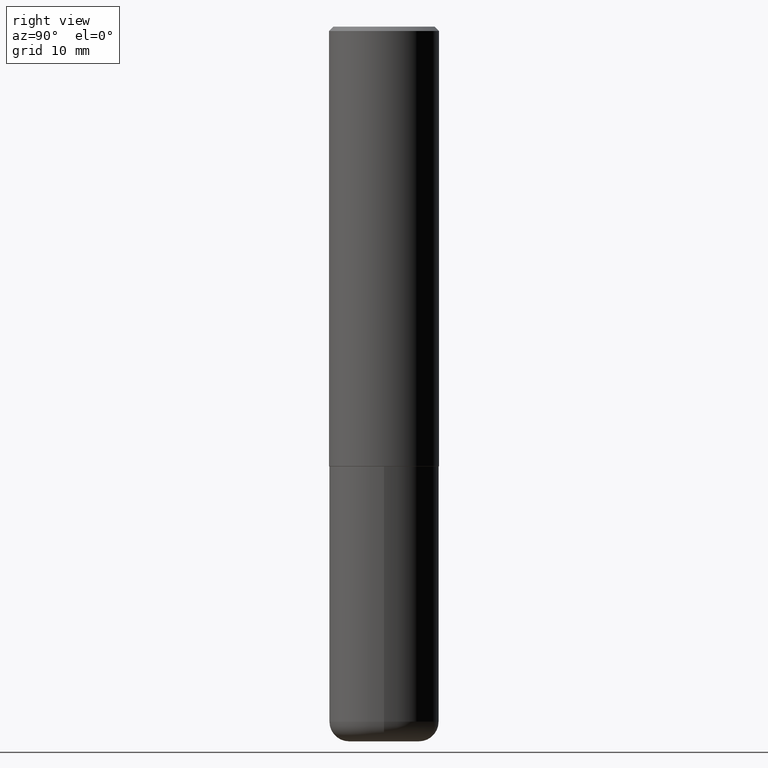
[diagram: clean part render]
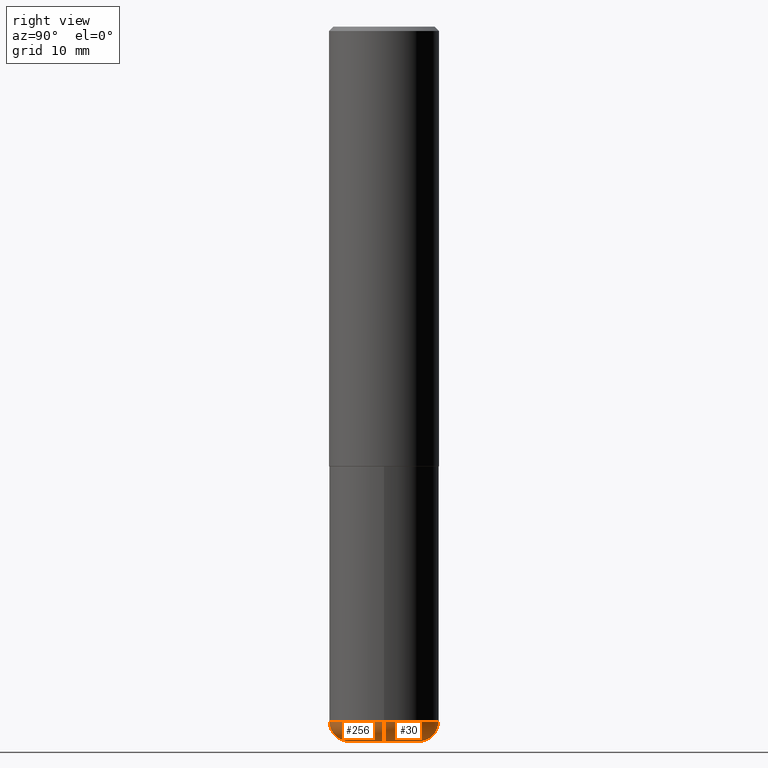
[diagram: same view with one multi-face feature highlighted, each face labeled with its STEP entity id]
A machine part, right view. The highlighted faces form ONE feature: a constant-radius fillet chain: 2 tangent blend faces with common blend radius 2.286 mm. The faces share edges in the B-rep.
Their STEP definitions:
[1] entity #30 (Torus):
#6 = CIRCLE ( 'NONE', #346, 0.1600000000000000033 ) ;
#11 = AXIS2_PLACEMENT_3D ( 'NONE', #387, #326, #294 ) ;
#23 = CIRCLE ( 'NONE', #94, 0.2500000000000000555 ) ;
#30 = ADVANCED_FACE ( 'NONE', ( #61 ), #378, .T. ) ;
#45 = VERTEX_POINT ( 'NONE', #190 ) ;
#49 = CIRCLE ( 'NONE', #228, 0.08999999999999964972 ) ;
#50 = ORIENTED_EDGE ( 'NONE', *, *, #299, .T. ) ;
#61 = FACE_OUTER_BOUND ( 'NONE', #111, .T. ) ;
#66 = CARTESIAN_POINT ( 'NONE',  ( 0.1600000000000000033, -1.246458837967002615E-14, -3.249999999999999556 ) ) ;
#72 = EDGE_CURVE ( 'NONE', #172, #136, #328, .T. ) ;
#93 = CARTESIAN_POINT ( 'NONE',  ( -0.1600000000000000033, -9.733585082684075330E-15, -3.249999999999999556 ) ) ;
#94 = AXIS2_PLACEMENT_3D ( 'NONE', #388, #156, #152 ) ;
#96 = CARTESIAN_POINT ( 'NONE',  ( 0.1600000000000000033, -1.215035505917414131E-14, -3.160000000000000142 ) ) ;
#111 = EDGE_LOOP ( 'NONE', ( #360, #50, #138, #272 ) ) ;
#128 = CARTESIAN_POINT ( 'NONE',  ( 0.2499999999999998612, -1.277882170016590626E-14, -3.160000000000000142 ) ) ;
#134 = EDGE_CURVE ( 'NONE', #136, #45, #23, .T. ) ;
#136 = VERTEX_POINT ( 'NONE', #128 ) ;
#138 = ORIENTED_EDGE ( 'NONE', *, *, #134, .F. ) ;
#143 = VERTEX_POINT ( 'NONE', #93 ) ;
#152 = DIRECTION ( 'NONE',  ( 1.000000000000000000, -6.982962677686269077E-15, 0.000000000000000000 ) ) ;
#156 = DIRECTION ( 'NONE',  ( -2.445468806185136597E-29, 3.491481338843145583E-15, 1.000000000000000000 ) ) ;
#172 = VERTEX_POINT ( 'NONE', #66 ) ;
#174 = DIRECTION ( 'NONE',  ( 7.105427357601001859E-15, 1.000000000000000000, -3.491481338843145583E-15 ) ) ;
#190 = CARTESIAN_POINT ( 'NONE',  ( -0.2499999999999998612, -9.256724191344090697E-15, -3.160000000000000142 ) ) ;
#198 = AXIS2_PLACEMENT_3D ( 'NONE', #96, #418, #352 ) ;
#206 = DIRECTION ( 'NONE',  ( -2.445468806185136597E-29, 3.491481338843145583E-15, 1.000000000000000000 ) ) ;
#223 = EDGE_CURVE ( 'NONE', #172, #143, #6, .T. ) ;
#228 = AXIS2_PLACEMENT_3D ( 'NONE', #399, #174, #319 ) ;
#272 = ORIENTED_EDGE ( 'NONE', *, *, #72, .F. ) ;
#277 = DIRECTION ( 'NONE',  ( 1.000000000000000000, -6.982962677686271444E-15, 0.000000000000000000 ) ) ;
#294 = DIRECTION ( 'NONE',  ( 1.000000000000000000, -6.982962677686265133E-15, 4.883557194083112340E-29 ) ) ;
#299 = EDGE_CURVE ( 'NONE', #143, #45, #49, .T. ) ;
#319 = DIRECTION ( 'NONE',  ( -1.000000000000000000, 7.105427357600996337E-15, 0.000000000000000000 ) ) ;
#326 = DIRECTION ( 'NONE',  ( -2.445468806185136597E-29, 3.491481338843145583E-15, 1.000000000000000000 ) ) ;
#328 = CIRCLE ( 'NONE', #198, 0.08999999999999964972 ) ;
#346 = AXIS2_PLACEMENT_3D ( 'NONE', #358, #206, #277 ) ;
#352 = DIRECTION ( 'NONE',  ( 1.000000000000000000, -6.982962677686273810E-15, 0.000000000000000000 ) ) ;
#358 = CARTESIAN_POINT ( 'NONE',  ( 7.947773620101692818E-29, -1.134731435124022127E-14, -3.249999999999999556 ) ) ;
#360 = ORIENTED_EDGE ( 'NONE', *, *, #223, .T. ) ;
#378 = TOROIDAL_SURFACE ( 'NONE', #11, 0.1600000000000000033, 0.08999999999999967748 ) ;
#387 = CARTESIAN_POINT ( 'NONE',  ( 7.727681427545032274E-29, -1.103308103074433958E-14, -3.160000000000000142 ) ) ;
#388 = CARTESIAN_POINT ( 'NONE',  ( 7.727681427545032274E-29, -1.103308103074433958E-14, -3.160000000000000142 ) ) ;
#399 = CARTESIAN_POINT ( 'NONE',  ( -0.1600000000000000033, -9.896212653528179854E-15, -3.160000000000000142 ) ) ;
#418 = DIRECTION ( 'NONE',  ( -6.982962677686266711E-15, -1.000000000000000000, 3.491481338843145583E-15 ) ) ;
[2] entity #256 (Torus):
#10 = ORIENTED_EDGE ( 'NONE', *, *, #153, .T. ) ;
#12 = CIRCLE ( 'NONE', #359, 0.1600000000000000033 ) ;
#37 = DIRECTION ( 'NONE',  ( -2.445468806185136597E-29, 3.491481338843145583E-15, 1.000000000000000000 ) ) ;
#41 = TOROIDAL_SURFACE ( 'NONE', #302, 0.1600000000000000033, 0.08999999999999967748 ) ;
#45 = VERTEX_POINT ( 'NONE', #190 ) ;
#49 = CIRCLE ( 'NONE', #228, 0.08999999999999964972 ) ;
#66 = CARTESIAN_POINT ( 'NONE',  ( 0.1600000000000000033, -1.246458837967002615E-14, -3.249999999999999556 ) ) ;
#72 = EDGE_CURVE ( 'NONE', #172, #136, #328, .T. ) ;
#77 = FACE_OUTER_BOUND ( 'NONE', #401, .T. ) ;
#91 = CARTESIAN_POINT ( 'NONE',  ( 7.947773620101692818E-29, -1.134731435124022127E-14, -3.249999999999999556 ) ) ;
#93 = CARTESIAN_POINT ( 'NONE',  ( -0.1600000000000000033, -9.733585082684075330E-15, -3.249999999999999556 ) ) ;
#96 = CARTESIAN_POINT ( 'NONE',  ( 0.1600000000000000033, -1.215035505917414131E-14, -3.160000000000000142 ) ) ;
#106 = ORIENTED_EDGE ( 'NONE', *, *, #299, .F. ) ;
#116 = CIRCLE ( 'NONE', #393, 0.2500000000000000555 ) ;
#128 = CARTESIAN_POINT ( 'NONE',  ( 0.2499999999999998612, -1.277882170016590626E-14, -3.160000000000000142 ) ) ;
#136 = VERTEX_POINT ( 'NONE', #128 ) ;
#143 = VERTEX_POINT ( 'NONE', #93 ) ;
#153 = EDGE_CURVE ( 'NONE', #143, #172, #12, .T. ) ;
#172 = VERTEX_POINT ( 'NONE', #66 ) ;
#174 = DIRECTION ( 'NONE',  ( 7.105427357601001859E-15, 1.000000000000000000, -3.491481338843145583E-15 ) ) ;
#186 = CARTESIAN_POINT ( 'NONE',  ( 7.727681427545032274E-29, -1.103308103074433958E-14, -3.160000000000000142 ) ) ;
#190 = CARTESIAN_POINT ( 'NONE',  ( -0.2499999999999998612, -9.256724191344090697E-15, -3.160000000000000142 ) ) ;
#198 = AXIS2_PLACEMENT_3D ( 'NONE', #96, #418, #352 ) ;
#224 = DIRECTION ( 'NONE',  ( 1.000000000000000000, -6.982962677686271444E-15, 0.000000000000000000 ) ) ;
#228 = AXIS2_PLACEMENT_3D ( 'NONE', #399, #174, #319 ) ;
#237 = CARTESIAN_POINT ( 'NONE',  ( 7.727681427545032274E-29, -1.103308103074433958E-14, -3.160000000000000142 ) ) ;
#252 = DIRECTION ( 'NONE',  ( -2.445468806185136597E-29, 3.491481338843145583E-15, 1.000000000000000000 ) ) ;
#256 = ADVANCED_FACE ( 'NONE', ( #77 ), #41, .T. ) ;
#280 = ORIENTED_EDGE ( 'NONE', *, *, #287, .F. ) ;
#282 = ORIENTED_EDGE ( 'NONE', *, *, #72, .T. ) ;
#287 = EDGE_CURVE ( 'NONE', #45, #136, #116, .T. ) ;
#299 = EDGE_CURVE ( 'NONE', #143, #45, #49, .T. ) ;
#302 = AXIS2_PLACEMENT_3D ( 'NONE', #237, #37, #390 ) ;
#319 = DIRECTION ( 'NONE',  ( -1.000000000000000000, 7.105427357600996337E-15, 0.000000000000000000 ) ) ;
#328 = CIRCLE ( 'NONE', #198, 0.08999999999999964972 ) ;
#352 = DIRECTION ( 'NONE',  ( 1.000000000000000000, -6.982962677686273810E-15, 0.000000000000000000 ) ) ;
#354 = DIRECTION ( 'NONE',  ( -2.445468806185136597E-29, 3.491481338843145583E-15, 1.000000000000000000 ) ) ;
#359 = AXIS2_PLACEMENT_3D ( 'NONE', #91, #354, #224 ) ;
#367 = DIRECTION ( 'NONE',  ( 1.000000000000000000, -6.982962677686269077E-15, 0.000000000000000000 ) ) ;
#390 = DIRECTION ( 'NONE',  ( 1.000000000000000000, -6.982962677686265133E-15, 4.883557194083112340E-29 ) ) ;
#393 = AXIS2_PLACEMENT_3D ( 'NONE', #186, #252, #367 ) ;
#399 = CARTESIAN_POINT ( 'NONE',  ( -0.1600000000000000033, -9.896212653528179854E-15, -3.160000000000000142 ) ) ;
#401 = EDGE_LOOP ( 'NONE', ( #106, #10, #282, #280 ) ) ;
#418 = DIRECTION ( 'NONE',  ( -6.982962677686266711E-15, -1.000000000000000000, 3.491481338843145583E-15 ) ) ;